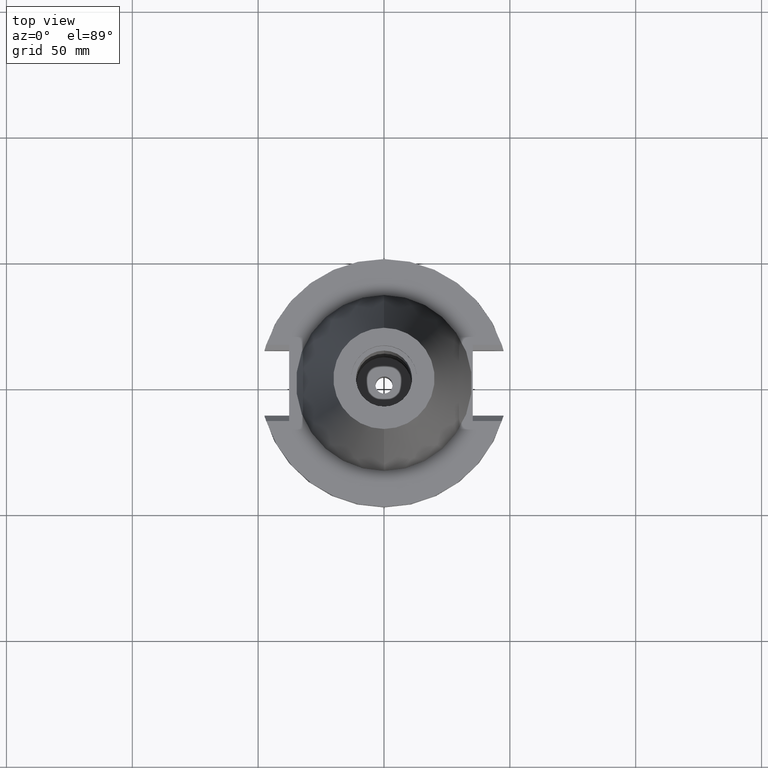
[diagram: clean part render]
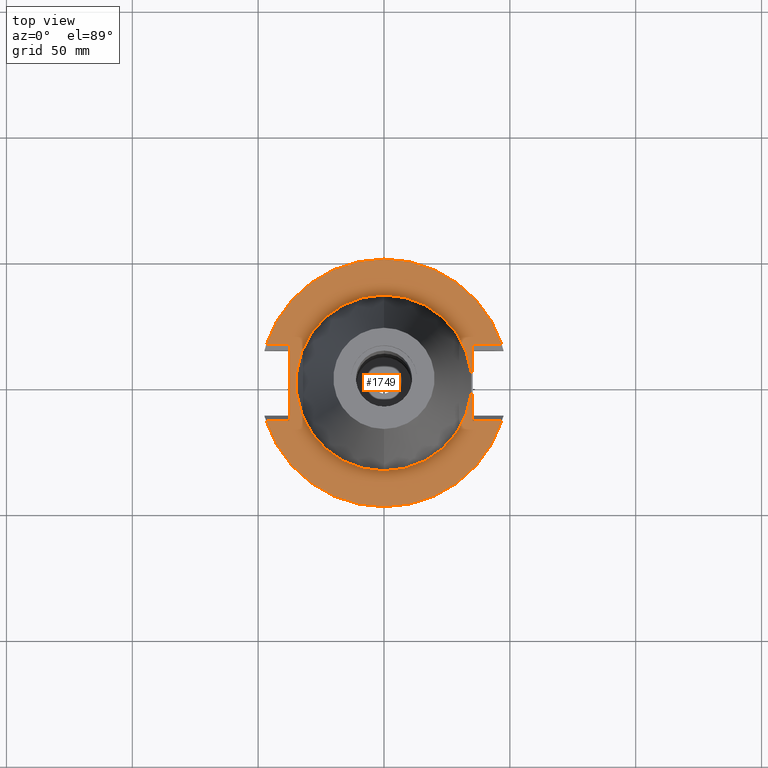
[diagram: same view with one face highlighted and labeled with its STEP entity id]
A machine part, top view. The second image highlights one B-rep face of the part: STEP entity #1749.
In plain terms, the highlighted planar face has unit normal (0, 0, -1).
Its self-contained STEP definition (entity closure, byte-faithful):
#94=DIRECTION('',(0.E0,-1.E0,0.E0));
#95=VECTOR('',#94,3.031E1);
#96=CARTESIAN_POINT('',(3.527E1,1.5155E1,-1.5E0));
#97=LINE('',#96,#95);
#101=DIRECTION('',(1.E0,1.014982473518E-14,0.E0));
#102=VECTOR('',#101,1.155089417397E1);
#103=CARTESIAN_POINT('',(3.527E1,-1.5155E1,-1.5E0));
#104=LINE('',#103,#102);
#108=CARTESIAN_POINT('',(0.E0,2.625887666732E-14,-1.5E0));
#109=DIRECTION('',(0.E0,0.E0,-1.E0));
#110=DIRECTION('',(9.514024724200E-1,-3.079502159004E-1,0.E0));
#111=AXIS2_PLACEMENT_3D('',#108,#109,#110);
#116=CARTESIAN_POINT('',(0.E0,2.625887666732E-14,-1.5E0));
#117=DIRECTION('',(0.E0,0.E0,-1.E0));
#118=DIRECTION('',(0.E0,-1.E0,0.E0));
#119=AXIS2_PLACEMENT_3D('',#116,#117,#118);
#124=DIRECTION('',(0.E0,1.E0,0.E0));
#125=VECTOR('',#124,3.031E1);
#126=CARTESIAN_POINT('',(-3.768E1,-1.5155E1,-1.5E0));
#127=LINE('',#126,#125);
#131=DIRECTION('',(-1.E0,-1.243716813234E-14,0.E0));
#132=VECTOR('',#131,9.140894173969E0);
#133=CARTESIAN_POINT('',(-3.768E1,1.5155E1,-1.5E0));
#134=LINE('',#133,#132);
#138=CARTESIAN_POINT('',(0.E0,2.625887666732E-14,-1.5E0));
#139=DIRECTION('',(0.E0,0.E0,-1.E0));
#140=DIRECTION('',(-9.514024724200E-1,3.079502159004E-1,0.E0));
#141=AXIS2_PLACEMENT_3D('',#138,#139,#140);
#146=CARTESIAN_POINT('',(0.E0,2.625887666732E-14,-1.5E0));
#147=DIRECTION('',(0.E0,0.E0,-1.E0));
#148=DIRECTION('',(0.E0,1.E0,0.E0));
#149=AXIS2_PLACEMENT_3D('',#146,#147,#148);
#154=CARTESIAN_POINT('',(0.E0,2.625887666732E-14,-1.5E0));
#155=DIRECTION('',(0.E0,0.E0,1.E0));
#156=DIRECTION('',(0.E0,-1.E0,0.E0));
#157=AXIS2_PLACEMENT_3D('',#154,#155,#156);
#162=CARTESIAN_POINT('',(0.E0,2.625887666732E-14,-1.5E0));
#163=DIRECTION('',(0.E0,0.E0,1.E0));
#164=DIRECTION('',(0.E0,1.E0,0.E0));
#165=AXIS2_PLACEMENT_3D('',#162,#163,#164);
#281=DIRECTION('',(1.E0,0.E0,0.E0));
#282=VECTOR('',#281,1.155089417397E1);
#283=CARTESIAN_POINT('',(3.527E1,1.5155E1,-1.5E0));
#284=LINE('',#283,#282);
#298=CARTESIAN_POINT('',(4.682089417397E1,1.5155E1,-1.5E0));
#561=DIRECTION('',(-1.E0,1.204850662821E-14,0.E0));
#562=VECTOR('',#561,9.140894173969E0);
#563=CARTESIAN_POINT('',(-3.768E1,-1.5155E1,-1.5E0));
#564=LINE('',#563,#562);
#575=CARTESIAN_POINT('',(4.682089417397E1,-1.5155E1,-1.5E0));
#600=CARTESIAN_POINT('',(-4.682089417397E1,-1.5155E1,-1.5E0));
#1532=CARTESIAN_POINT('',(3.527E1,-1.5155E1,-1.5E0));
#1533=VERTEX_POINT('',#1532);
#1534=CARTESIAN_POINT('',(3.527E1,1.5155E1,-1.5E0));
#1535=VERTEX_POINT('',#1534);
#1575=CARTESIAN_POINT('',(-3.768E1,1.5155E1,-1.5E0));
#1576=VERTEX_POINT('',#1575);
#1577=CARTESIAN_POINT('',(-3.768E1,-1.5155E1,-1.5E0));
#1578=VERTEX_POINT('',#1577);
#1621=VERTEX_POINT('',#575);
#1622=VERTEX_POINT('',#600);
#1623=CARTESIAN_POINT('',(-6.280856145559E-14,-4.92125E1,-1.5E0));
#1624=VERTEX_POINT('',#1623);
#1627=VERTEX_POINT('',#298);
#1628=CARTESIAN_POINT('',(0.E0,4.92125E1,-1.5E0));
#1629=VERTEX_POINT('',#1628);
#1630=CARTESIAN_POINT('',(-4.682089417397E1,1.5155E1,-1.5E0));
#1631=VERTEX_POINT('',#1630);
#1632=CARTESIAN_POINT('',(0.E0,-3.4925E1,-1.5E0));
#1633=CARTESIAN_POINT('',(0.E0,3.4925E1,-1.5E0));
#1634=VERTEX_POINT('',#1632);
#1635=VERTEX_POINT('',#1633);
#1718=CARTESIAN_POINT('',(0.E0,1.206277097160E-14,-1.5E0));
#1719=DIRECTION('',(0.E0,0.E0,-1.E0));
#1720=DIRECTION('',(0.E0,-1.E0,0.E0));
#1721=AXIS2_PLACEMENT_3D('',#1718,#1719,#1720);
#1722=PLANE('',#1721);
#1724=ORIENTED_EDGE('',*,*,#1723,.T.);
#1726=ORIENTED_EDGE('',*,*,#1725,.T.);
#1728=ORIENTED_EDGE('',*,*,#1727,.T.);
#1730=ORIENTED_EDGE('',*,*,#1729,.T.);
#1732=ORIENTED_EDGE('',*,*,#1731,.F.);
#1734=ORIENTED_EDGE('',*,*,#1733,.T.);
#1736=ORIENTED_EDGE('',*,*,#1735,.T.);
#1738=ORIENTED_EDGE('',*,*,#1737,.T.);
#1740=ORIENTED_EDGE('',*,*,#1739,.T.);
#1742=ORIENTED_EDGE('',*,*,#1741,.F.);
#1743=EDGE_LOOP('',(#1724,#1726,#1728,#1730,#1732,#1734,#1736,#1738,#1740,
#1742));
#1744=FACE_OUTER_BOUND('',#1743,.F.);
#1745=ORIENTED_EDGE('',*,*,#1697,.T.);
#1746=ORIENTED_EDGE('',*,*,#1713,.T.);
#1747=EDGE_LOOP('',(#1745,#1746));
#1748=FACE_BOUND('',#1747,.F.);
#112=CIRCLE('',#111,4.92125E1);
#120=CIRCLE('',#119,4.92125E1);
#142=CIRCLE('',#141,4.92125E1);
#150=CIRCLE('',#149,4.92125E1);
#158=CIRCLE('',#157,3.4925E1);
#166=CIRCLE('',#165,3.4925E1);
#1697=EDGE_CURVE('',#1634,#1635,#158,.T.);
#1713=EDGE_CURVE('',#1635,#1634,#166,.T.);
#1723=EDGE_CURVE('',#1535,#1533,#97,.T.);
#1725=EDGE_CURVE('',#1533,#1621,#104,.T.);
#1727=EDGE_CURVE('',#1621,#1624,#112,.T.);
#1729=EDGE_CURVE('',#1624,#1622,#120,.T.);
#1731=EDGE_CURVE('',#1578,#1622,#564,.T.);
#1733=EDGE_CURVE('',#1578,#1576,#127,.T.);
#1735=EDGE_CURVE('',#1576,#1631,#134,.T.);
#1737=EDGE_CURVE('',#1631,#1629,#142,.T.);
#1739=EDGE_CURVE('',#1629,#1627,#150,.T.);
#1741=EDGE_CURVE('',#1535,#1627,#284,.T.);
#1749=ADVANCED_FACE('',(#1744,#1748),#1722,.F.);